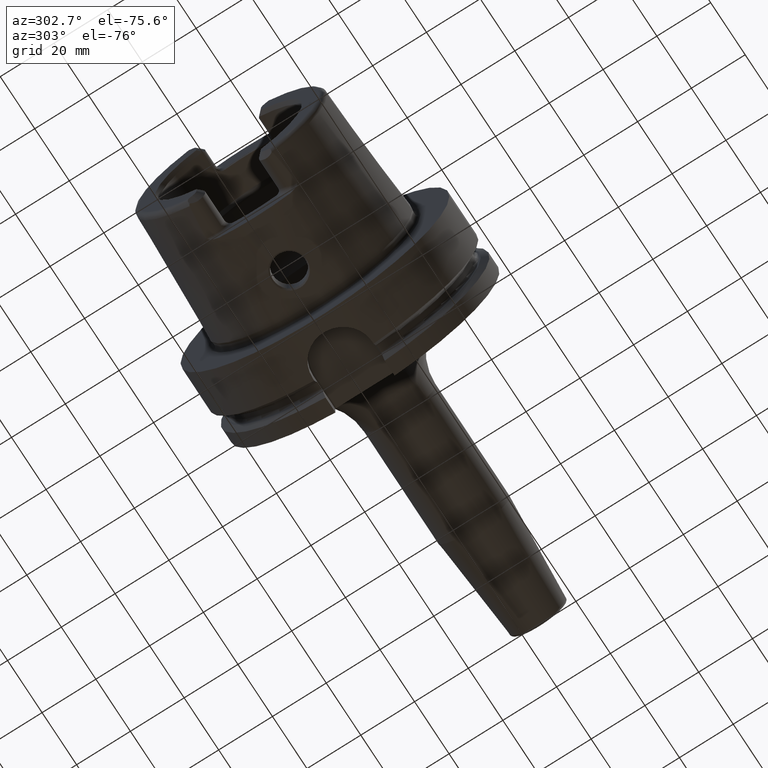
[diagram: clean part render]
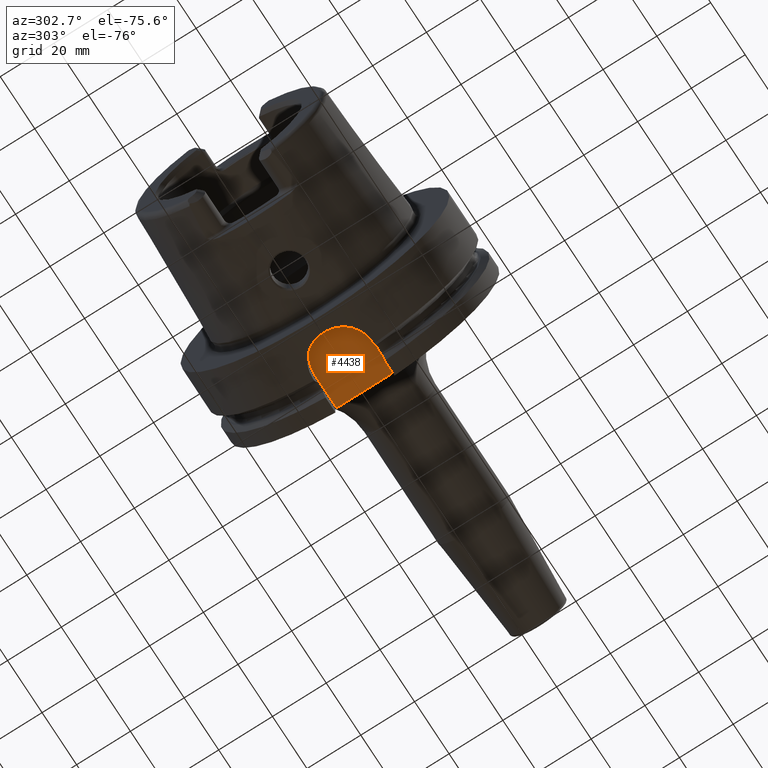
[diagram: same view with one face highlighted and labeled with its STEP entity id]
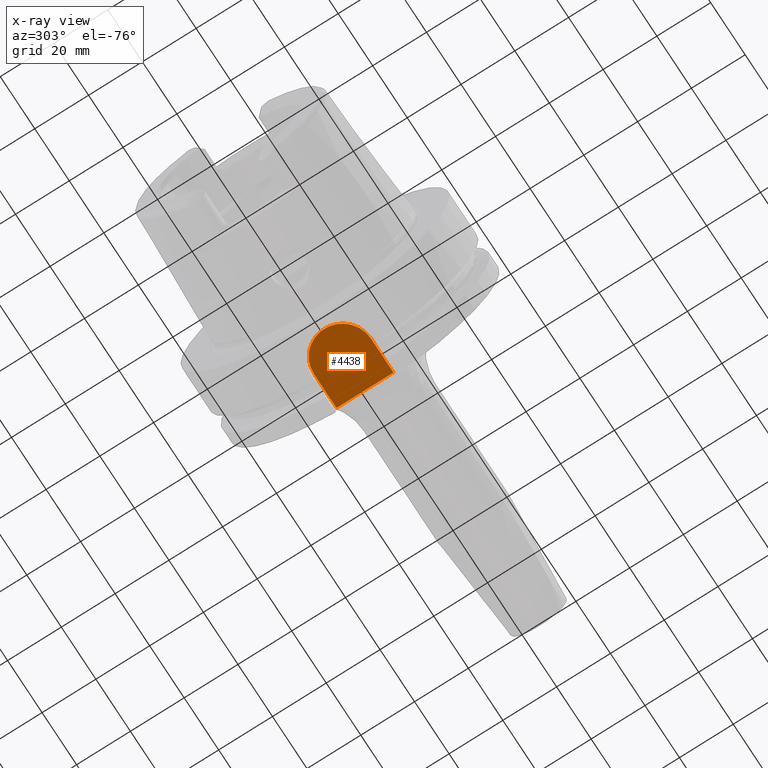
[diagram: x-ray of the same camera — body ghosted, the highlighted face saturated]
A machine part, auxiliary view. The second image highlights one B-rep face of the part: STEP entity #4438.
The next image is the same camera in x-ray: the body ghosted, the highlighted face saturated — about 0% of this face is hidden behind the body in this view.
In plain terms, the highlighted planar face has unit normal (0, 0, -1).
Its self-contained STEP definition (entity closure, byte-faithful):
#1083=DIRECTION('',(0.E0,-1.E0,0.E0));
#1084=VECTOR('',#1083,2.12E1);
#1085=CARTESIAN_POINT('',(2.9E1,1.06E1,-4.4E1));
#1086=LINE('',#1085,#1084);
#1267=DIRECTION('',(1.E0,3.248915666844E-10,-3.259565609311E-10));
#1268=VECTOR('',#1267,1.299999999828E1);
#1269=CARTESIAN_POINT('',(1.600000000172E1,-1.060000000422E1,
-4.399999999576E1));
#1270=LINE('',#1269,#1268);
#1271=DIRECTION('',(-1.E0,3.244620982657E-10,3.263850728660E-10));
#1272=VECTOR('',#1271,1.299999999796E1);
#1273=CARTESIAN_POINT('',(2.9E1,1.06E1,-4.4E1));
#1274=LINE('',#1273,#1272);
#1275=CARTESIAN_POINT('',(1.6E1,0.E0,-4.399999965713E1));
#1276=DIRECTION('',(0.E0,0.E0,1.E0));
#1277=DIRECTION('',(0.E0,1.E0,0.E0));
#1278=AXIS2_PLACEMENT_3D('',#1275,#1276,#1277);
#2954=CARTESIAN_POINT('',(2.9E1,1.06E1,-4.4E1));
#2956=VERTEX_POINT('',#2954);
#2959=CARTESIAN_POINT('',(2.9E1,-1.06E1,-4.4E1));
#2961=VERTEX_POINT('',#2959);
#3034=CARTESIAN_POINT('',(1.600000000172E1,-1.060000000422E1,
-4.399999999576E1));
#3035=VERTEX_POINT('',#3034);
#3040=CARTESIAN_POINT('',(1.600000000204E1,1.060000000422E1,-4.399999999576E1));
#3041=VERTEX_POINT('',#3040);
#4427=CARTESIAN_POINT('',(0.E0,0.E0,-4.4E1));
#4428=DIRECTION('',(0.E0,0.E0,-1.E0));
#4429=DIRECTION('',(1.E0,0.E0,0.E0));
#4430=AXIS2_PLACEMENT_3D('',#4427,#4428,#4429);
#4431=PLANE('',#4430);
#4432=ORIENTED_EDGE('',*,*,#4419,.T.);
#4433=ORIENTED_EDGE('',*,*,#4240,.F.);
#4434=ORIENTED_EDGE('',*,*,#4393,.T.);
#4435=ORIENTED_EDGE('',*,*,#4405,.T.);
#4436=EDGE_LOOP('',(#4432,#4433,#4434,#4435));
#4437=FACE_OUTER_BOUND('',#4436,.F.);
#4438=ADVANCED_FACE('',(#4437),#4431,.T.);
#1279=CIRCLE('',#1278,1.059999968251E1);
#4240=EDGE_CURVE('',#2956,#2961,#1086,.T.);
#4393=EDGE_CURVE('',#2956,#3041,#1274,.T.);
#4405=EDGE_CURVE('',#3041,#3035,#1279,.T.);
#4419=EDGE_CURVE('',#3035,#2961,#1270,.T.);